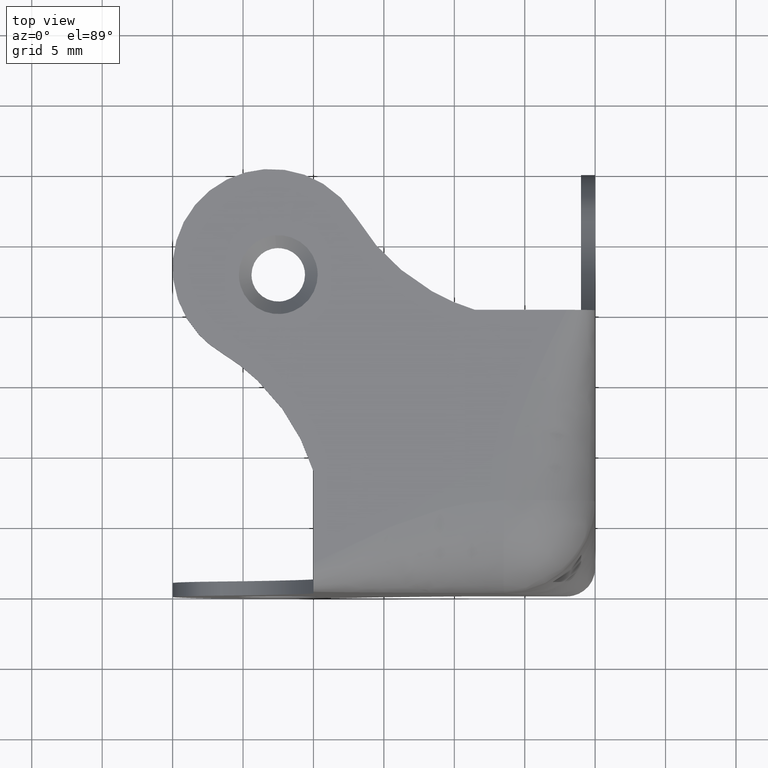
[diagram: clean part render]
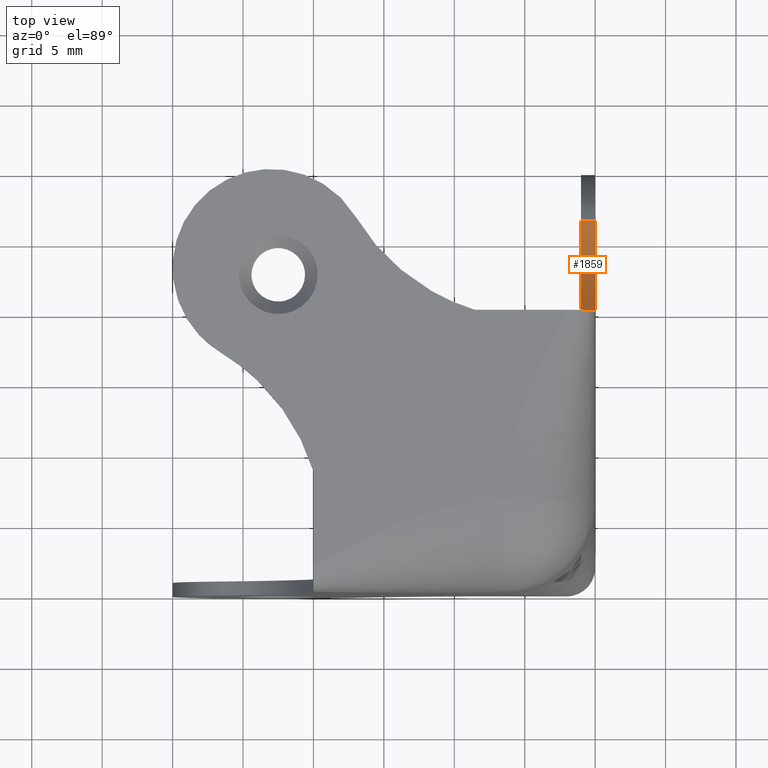
[diagram: same view with one face highlighted and labeled with its STEP entity id]
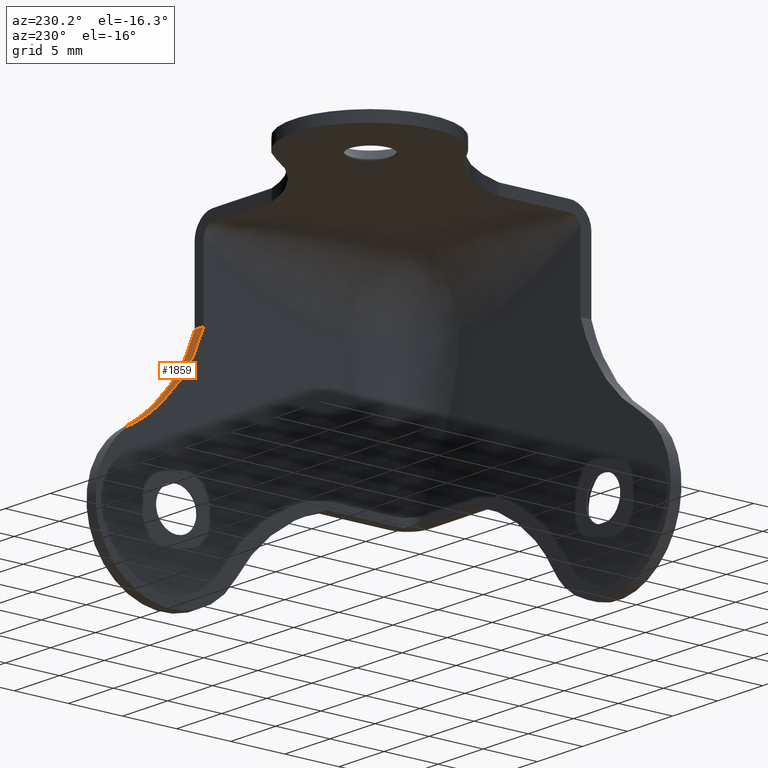
[diagram: same view with one face highlighted and labeled with its STEP entity id]
A machine part, top view. The second image highlights one B-rep face of the part: STEP entity #1859.
A second angle (auxiliary view) of the same face is appended — the face is thin or edge-on in the first view.
In plain terms, the highlighted face is a freeform B-spline surface patch.
Its self-contained STEP definition (entity closure, byte-faithful):
#1760=CARTESIAN_POINT('',(0.0,26.609209523297601,12.997799754804120));
#1761=VERTEX_POINT('',#1760);
#1780=CARTESIAN_POINT('',(-1.0,26.609209523297601,12.997799754804120));
#1781=VERTEX_POINT('',#1780);
#1799=CARTESIAN_POINT('',(-1.0,26.609209523297601,12.997799754804120));
#1800=CARTESIAN_POINT('',(0.0,26.609209523297601,12.997799754804120));
#1801=QUASI_UNIFORM_CURVE('',1,(#1799,#1800),.UNSPECIFIED.,.F.,.U.);
#1802=EDGE_CURVE('',#1781,#1761,#1801,.T.);
#1807=CARTESIAN_POINT('',(-1.025000000000000,26.960864957629720,12.792637425301290));
#1808=CARTESIAN_POINT('',(0.025625000000000,26.960864957629720,12.792637425301290));
#1809=CARTESIAN_POINT('',(-1.025000000000000,21.478409646633683,15.892251529846298));
#1810=CARTESIAN_POINT('',(0.025625000000000,21.478409646633683,15.892251529846298));
#1811=CARTESIAN_POINT('',(-1.025000000000000,19.852016194753730,21.976638777042591));
#1812=CARTESIAN_POINT('',(0.025625000000000,19.852016194753730,21.976638777042591));
#1820=(BOUNDED_SURFACE()B_SPLINE_SURFACE(1,2,((#1807,#1809,#1811),(#1808,#1810,#1812)),.UNSPECIFIED.,.F.,.F.,.U.)B_SPLINE_SURFACE_WITH_KNOTS((2,2),(3,3),(0.0,1.0),(0.0,12.084955838233110),.UNSPECIFIED.)GEOMETRIC_REPRESENTATION_ITEM()RATIONAL_B_SPLINE_SURFACE(((1.0,0.918066638094205,0.991430513560494),(1.0,0.918066638094205,0.991430513560494)))REPRESENTATION_ITEM('')SURFACE());
#1821=CARTESIAN_POINT('',(0.0,20.0,21.460272000000000));
#1822=VERTEX_POINT('',#1821);
#1823=CARTESIAN_POINT('',(0.0,20.0,21.460272000000000));
#1824=CARTESIAN_POINT('',(0.0,21.682721756149867,15.962341666179869));
#1825=CARTESIAN_POINT('',(0.0,26.609209523297601,12.997799754804131));
#1833=(BOUNDED_CURVE()B_SPLINE_CURVE(2,(#1823,#1824,#1825),.UNSPECIFIED.,.F.,.U.)CURVE()GEOMETRIC_REPRESENTATION_ITEM()QUASI_UNIFORM_CURVE()RATIONAL_B_SPLINE_CURVE((1.0,0.933752828470916,1.0))REPRESENTATION_ITEM(''));
#1834=EDGE_CURVE('',#1822,#1761,#1833,.T.);
#1835=ORIENTED_EDGE('',*,*,#1834,.T.);
#1836=ORIENTED_EDGE('',*,*,#1802,.F.);
#1837=CARTESIAN_POINT('',(-1.0,20.0,21.460272000000000));
#1838=VERTEX_POINT('',#1837);
#1839=CARTESIAN_POINT('',(-1.0,20.0,21.460272000000000));
#1840=CARTESIAN_POINT('',(-1.0,21.682721756149867,15.962341666179869));
#1841=CARTESIAN_POINT('',(-1.0,26.609209523297601,12.997799754804131));
#1849=(BOUNDED_CURVE()B_SPLINE_CURVE(2,(#1839,#1840,#1841),.UNSPECIFIED.,.F.,.U.)CURVE()GEOMETRIC_REPRESENTATION_ITEM()QUASI_UNIFORM_CURVE()RATIONAL_B_SPLINE_CURVE((1.0,0.933752828470916,1.0))REPRESENTATION_ITEM(''));
#1850=EDGE_CURVE('',#1838,#1781,#1849,.T.);
#1851=ORIENTED_EDGE('',*,*,#1850,.F.);
#1852=CARTESIAN_POINT('',(-1.0,20.0,21.460272000000000));
#1853=CARTESIAN_POINT('',(0.0,20.0,21.460272000000000));
#1854=QUASI_UNIFORM_CURVE('',1,(#1852,#1853),.UNSPECIFIED.,.F.,.U.);
#1855=EDGE_CURVE('',#1838,#1822,#1854,.T.);
#1856=ORIENTED_EDGE('',*,*,#1855,.T.);
#1857=EDGE_LOOP('',(#1835,#1836,#1851,#1856));
#1858=FACE_OUTER_BOUND('',#1857,.T.);
#1859=ADVANCED_FACE('',(#1858),#1820,.F.);